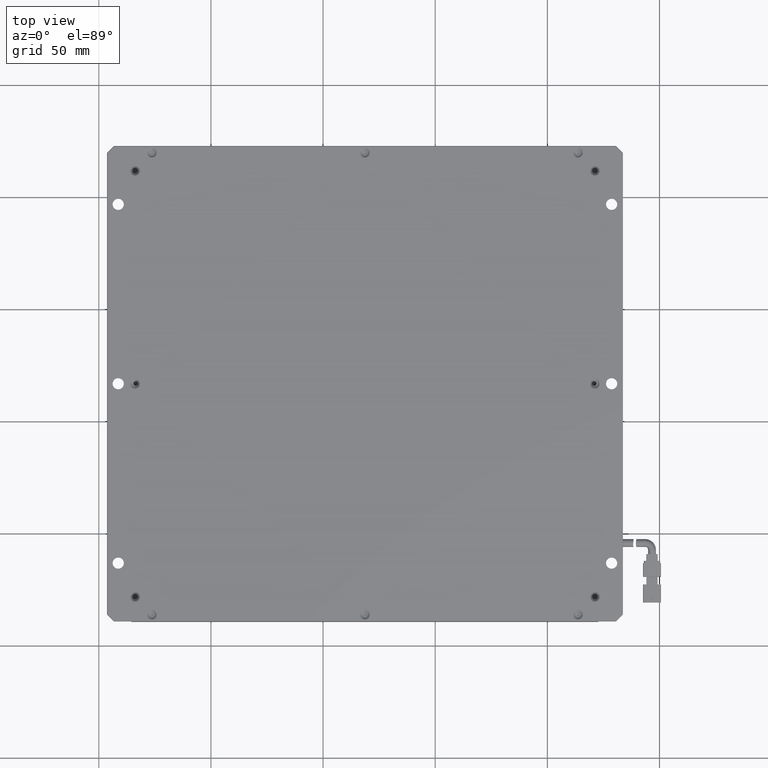
[diagram: clean part render]
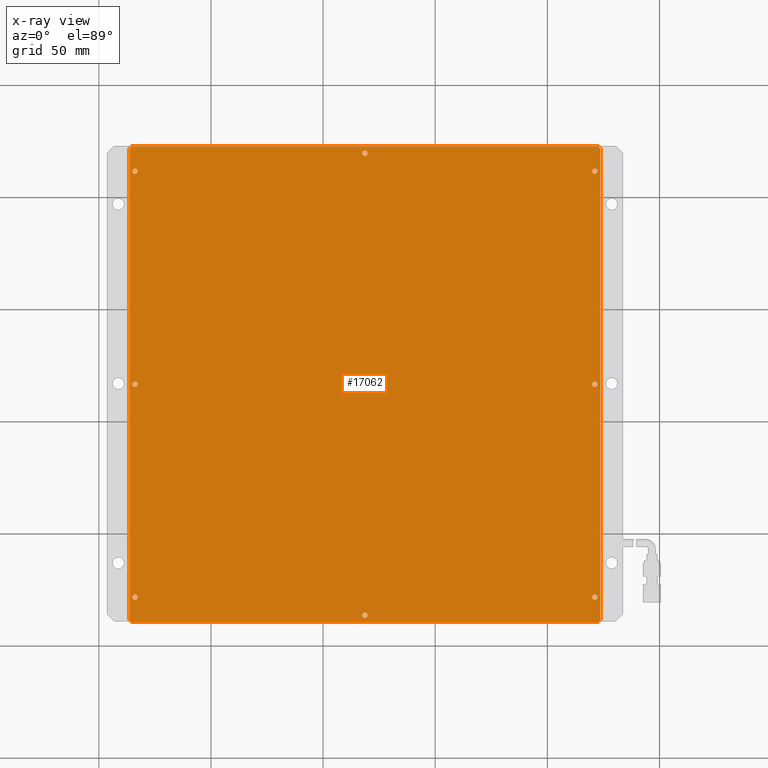
[diagram: x-ray — body ghosted, one internal face saturated and labeled with its STEP entity id]
A machine part, top view, then the same camera in x-ray: the body is ghosted and one INTERNAL B-rep face — a face not visible from any outside direction — is saturated and labeled: STEP entity #17062.
In plain terms, the highlighted planar face has unit normal (0, 0, -1).
Its self-contained STEP definition (entity closure, byte-faithful):
#71 = DIRECTION ( 'NONE',  ( 0.7071067811865573400, -0.7071067811865378000, 0.0000000000000000000 ) ) ;
#78 = CIRCLE ( 'NONE', #20793, 1.199999999999992600 ) ;
#258 = EDGE_LOOP ( 'NONE', ( #5893, #8207 ) ) ;
#287 = EDGE_LOOP ( 'NONE', ( #1516, #8221 ) ) ;
#378 = DIRECTION ( 'NONE',  ( 1.000000000000000000, 0.0000000000000000000, 0.0000000000000000000 ) ) ;
#506 = ORIENTED_EDGE ( 'NONE', *, *, #1738, .T. ) ;
#669 = EDGE_LOOP ( 'NONE', ( #8287, #12171 ) ) ;
#685 = EDGE_CURVE ( 'NONE', #4352, #11731, #16943, .T. ) ;
#760 = AXIS2_PLACEMENT_3D ( 'NONE', #5854, #17994, #14451 ) ;
#848 = EDGE_CURVE ( 'NONE', #20745, #19392, #3609, .T. ) ;
#1081 = DIRECTION ( 'NONE',  ( 1.000000000000000000, 0.0000000000000000000, 0.0000000000000000000 ) ) ;
#1124 = ORIENTED_EDGE ( 'NONE', *, *, #848, .F. ) ;
#1516 = ORIENTED_EDGE ( 'NONE', *, *, #10580, .F. ) ;
#1579 = EDGE_CURVE ( 'NONE', #2083, #21833, #21722, .T. ) ;
#1597 = DIRECTION ( 'NONE',  ( 1.000000000000000000, 0.0000000000000000000, 0.0000000000000000000 ) ) ;
#1726 = ORIENTED_EDGE ( 'NONE', *, *, #7070, .F. ) ;
#1730 = CARTESIAN_POINT ( 'NONE',  ( -83.83424941752386400, 61.62124601721920000, -13.00000000002364500 ) ) ;
#1738 = EDGE_CURVE ( 'NONE', #7660, #18110, #8137, .T. ) ;
#1745 = AXIS2_PLACEMENT_3D ( 'NONE', #1792, #20596, #3573 ) ;
#1761 = FACE_BOUND ( 'NONE', #18092, .T. ) ;
#1792 = CARTESIAN_POINT ( 'NONE',  ( 121.1657505824761500, 61.62124601721920000, -13.00000000002364500 ) ) ;
#1925 = DIRECTION ( 'NONE',  ( -0.7071067811865573400, 0.7071067811865378000, -0.0000000000000000000 ) ) ;
#1928 = EDGE_LOOP ( 'NONE', ( #1726, #12936 ) ) ;
#1984 = CARTESIAN_POINT ( 'NONE',  ( 121.1657505824761500, -128.3787539827808100, -13.00000000002364500 ) ) ;
#2033 = CARTESIAN_POINT ( 'NONE',  ( -86.33424941752386400, 71.62124601721917800, -13.00000000002364500 ) ) ;
#2083 = VERTEX_POINT ( 'NONE', #13234 ) ;
#2137 = AXIS2_PLACEMENT_3D ( 'NONE', #17340, #3522, #1597 ) ;
#2141 = VERTEX_POINT ( 'NONE', #14995 ) ;
#2520 = VERTEX_POINT ( 'NONE', #19645 ) ;
#2551 = VECTOR ( 'NONE', #18562, 1000.000000000000000 ) ;
#2666 = DIRECTION ( 'NONE',  ( 1.000000000000000000, 0.0000000000000000000, 0.0000000000000000000 ) ) ;
#3021 = DIRECTION ( 'NONE',  ( -0.0000000000000000000, -0.0000000000000000000, 1.000000000000000000 ) ) ;
#3076 = CARTESIAN_POINT ( 'NONE',  ( 123.6657505824761500, -138.3787539827808400, -13.00000000002364500 ) ) ;
#3077 = ORIENTED_EDGE ( 'NONE', *, *, #16682, .F. ) ;
#3240 = CARTESIAN_POINT ( 'NONE',  ( 121.1657505824761500, -33.37875398278074400, -13.00000000002364500 ) ) ;
#3263 = CARTESIAN_POINT ( 'NONE',  ( -85.33424941752389300, -139.3787539827807800, -13.00000000002364500 ) ) ;
#3374 = FACE_BOUND ( 'NONE', #258, .T. ) ;
#3496 = CARTESIAN_POINT ( 'NONE',  ( 123.6657505824761400, -139.3787539827808400, -13.00000000002364500 ) ) ;
#3503 = VERTEX_POINT ( 'NONE', #5638 ) ;
#3518 = VECTOR ( 'NONE', #9071, 1000.000000000000000 ) ;
#3522 = DIRECTION ( 'NONE',  ( -0.0000000000000000000, -0.0000000000000000000, 1.000000000000000000 ) ) ;
#3573 = DIRECTION ( 'NONE',  ( 1.000000000000000000, 0.0000000000000000000, 0.0000000000000000000 ) ) ;
#3609 = LINE ( 'NONE', #3496, #16677 ) ;
#3639 = CARTESIAN_POINT ( 'NONE',  ( 18.66575058247614600, -136.3787539827807800, -13.00000000002364500 ) ) ;
#3678 = VERTEX_POINT ( 'NONE', #4112 ) ;
#3742 = CARTESIAN_POINT ( 'NONE',  ( -83.83424941752386400, -128.3787539827808100, -13.00000000002364500 ) ) ;
#3937 = DIRECTION ( 'NONE',  ( -0.0000000000000000000, -0.0000000000000000000, 1.000000000000000000 ) ) ;
#4044 = EDGE_LOOP ( 'NONE', ( #21073, #3077 ) ) ;
#4112 = CARTESIAN_POINT ( 'NONE',  ( 119.9657505824761600, 61.62124601721920000, -13.00000000002364500 ) ) ;
#4127 = CARTESIAN_POINT ( 'NONE',  ( 121.1657505824761500, -33.37875398278074400, -13.00000000002364500 ) ) ;
#4352 = VERTEX_POINT ( 'NONE', #18500 ) ;
#4491 = EDGE_CURVE ( 'NONE', #4352, #8623, #11775, .T. ) ;
#4614 = EDGE_CURVE ( 'NONE', #4874, #18899, #78, .T. ) ;
#4643 = CARTESIAN_POINT ( 'NONE',  ( 122.6657505824761200, -139.3787539827808400, -13.00000000002364500 ) ) ;
#4783 = AXIS2_PLACEMENT_3D ( 'NONE', #4127, #16302, #5723 ) ;
#4814 = CARTESIAN_POINT ( 'NONE',  ( -83.83424941752386400, -33.37875398278074400, -13.00000000002364500 ) ) ;
#4840 = DIRECTION ( 'NONE',  ( 1.000000000000000000, 0.0000000000000000000, 0.0000000000000000000 ) ) ;
#4874 = VERTEX_POINT ( 'NONE', #11390 ) ;
#5180 = EDGE_CURVE ( 'NONE', #3503, #19392, #18243, .T. ) ;
#5212 = CARTESIAN_POINT ( 'NONE',  ( -86.33424941752387800, 72.62124601721919200, -13.00000000002364500 ) ) ;
#5261 = CIRCLE ( 'NONE', #14043, 1.199999999999992600 ) ;
#5461 = DIRECTION ( 'NONE',  ( -1.000000000000000000, -0.0000000000000000000, -0.0000000000000000000 ) ) ;
#5538 = CIRCLE ( 'NONE', #4783, 1.199999999999992600 ) ;
#5638 = CARTESIAN_POINT ( 'NONE',  ( -86.33424941752386400, -138.3787539827807800, -13.00000000002364500 ) ) ;
#5709 = EDGE_CURVE ( 'NONE', #17496, #21068, #9774, .T. ) ;
#5723 = DIRECTION ( 'NONE',  ( 1.000000000000000000, 0.0000000000000000000, 0.0000000000000000000 ) ) ;
#5854 = CARTESIAN_POINT ( 'NONE',  ( 18.66575058247614600, -136.3787539827807800, -13.00000000002364500 ) ) ;
#5862 = CARTESIAN_POINT ( 'NONE',  ( -82.63424941752387600, -33.37875398278074400, -13.00000000002364500 ) ) ;
#5893 = ORIENTED_EDGE ( 'NONE', *, *, #9260, .F. ) ;
#5926 = CARTESIAN_POINT ( 'NONE',  ( -83.83424941752386400, -33.37875398278074400, -13.00000000002364500 ) ) ;
#6083 = CIRCLE ( 'NONE', #10923, 1.199999999999992600 ) ;
#6092 = DIRECTION ( 'NONE',  ( -0.0000000000000000000, -0.0000000000000000000, 1.000000000000000000 ) ) ;
#6317 = CIRCLE ( 'NONE', #18337, 1.199999999999992600 ) ;
#6361 = FACE_BOUND ( 'NONE', #17769, .T. ) ;
#6370 = DIRECTION ( 'NONE',  ( 1.000000000000000000, 0.0000000000000000000, 0.0000000000000000000 ) ) ;
#6591 = DIRECTION ( 'NONE',  ( -0.0000000000000000000, -0.0000000000000000000, 1.000000000000000000 ) ) ;
#6593 = ORIENTED_EDGE ( 'NONE', *, *, #20720, .T. ) ;
#6833 = CARTESIAN_POINT ( 'NONE',  ( -86.33424941752385000, -138.3787539827808400, -13.00000000002364500 ) ) ;
#7070 = EDGE_CURVE ( 'NONE', #21833, #2083, #12169, .T. ) ;
#7153 = CIRCLE ( 'NONE', #2137, 1.199999999999992600 ) ;
#7484 = CIRCLE ( 'NONE', #8716, 1.199999999999992600 ) ;
#7660 = VERTEX_POINT ( 'NONE', #17817 ) ;
#7751 = DIRECTION ( 'NONE',  ( 1.000000000000000000, 0.0000000000000000000, 0.0000000000000000000 ) ) ;
#8044 = DIRECTION ( 'NONE',  ( 0.7071067811865378000, 0.7071067811865573400, 0.0000000000000000000 ) ) ;
#8115 = CARTESIAN_POINT ( 'NONE',  ( 123.6657505824761400, 72.62124601721919200, -13.00000000002364500 ) ) ;
#8122 = CIRCLE ( 'NONE', #14813, 1.199999999999992600 ) ;
#8137 = LINE ( 'NONE', #19340, #3518 ) ;
#8207 = ORIENTED_EDGE ( 'NONE', *, *, #20483, .F. ) ;
#8221 = ORIENTED_EDGE ( 'NONE', *, *, #8327, .F. ) ;
#8287 = ORIENTED_EDGE ( 'NONE', *, *, #17313, .F. ) ;
#8324 = AXIS2_PLACEMENT_3D ( 'NONE', #3639, #15664, #8565 ) ;
#8327 = EDGE_CURVE ( 'NONE', #3678, #16185, #7153, .T. ) ;
#8392 = EDGE_LOOP ( 'NONE', ( #20937, #15351 ) ) ;
#8435 = DIRECTION ( 'NONE',  ( -0.0000000000000000000, -0.0000000000000000000, 1.000000000000000000 ) ) ;
#8444 = AXIS2_PLACEMENT_3D ( 'NONE', #11515, #3021, #6370 ) ;
#8467 = VERTEX_POINT ( 'NONE', #9117 ) ;
#8501 = EDGE_LOOP ( 'NONE', ( #12468, #17485, #506, #9353, #14924, #1124, #6593, #21511 ) ) ;
#8550 = AXIS2_PLACEMENT_3D ( 'NONE', #3240, #6591, #4840 ) ;
#8565 = DIRECTION ( 'NONE',  ( 1.000000000000000000, 0.0000000000000000000, 0.0000000000000000000 ) ) ;
#8623 = VERTEX_POINT ( 'NONE', #3076 ) ;
#8716 = AXIS2_PLACEMENT_3D ( 'NONE', #10035, #8435, #15241 ) ;
#8857 = DIRECTION ( 'NONE',  ( -0.0000000000000000000, 1.000000000000000000, -0.0000000000000000000 ) ) ;
#8907 = VECTOR ( 'NONE', #12889, 1000.000000000000000 ) ;
#8959 = DIRECTION ( 'NONE',  ( 1.000000000000000000, 0.0000000000000000000, 0.0000000000000000000 ) ) ;
#9071 = DIRECTION ( 'NONE',  ( -0.7071067811865378000, -0.7071067811865573400, 0.0000000000000000000 ) ) ;
#9117 = CARTESIAN_POINT ( 'NONE',  ( -85.03424941752385300, -128.3787539827808100, -13.00000000002364500 ) ) ;
#9201 = VERTEX_POINT ( 'NONE', #5862 ) ;
#9214 = CARTESIAN_POINT ( 'NONE',  ( 122.3657505824761500, -33.37875398278074400, -13.00000000002364500 ) ) ;
#9251 = VERTEX_POINT ( 'NONE', #11453 ) ;
#9260 = EDGE_CURVE ( 'NONE', #19733, #8467, #14730, .T. ) ;
#9353 = ORIENTED_EDGE ( 'NONE', *, *, #17430, .F. ) ;
#9390 = CIRCLE ( 'NONE', #8444, 1.199999999999992600 ) ;
#9498 = VERTEX_POINT ( 'NONE', #13984 ) ;
#9509 = CARTESIAN_POINT ( 'NONE',  ( 123.6657505824761400, 72.62124601721919200, -13.00000000002364500 ) ) ;
#9578 = VECTOR ( 'NONE', #1925, 1000.000000000000000 ) ;
#9627 = DIRECTION ( 'NONE',  ( -0.0000000000000000000, -0.0000000000000000000, 1.000000000000000000 ) ) ;
#9774 = CIRCLE ( 'NONE', #8550, 1.199999999999992600 ) ;
#9902 = ORIENTED_EDGE ( 'NONE', *, *, #5709, .F. ) ;
#10035 = CARTESIAN_POINT ( 'NONE',  ( -83.83424941752386400, 61.62124601721920000, -13.00000000002364500 ) ) ;
#10448 = ORIENTED_EDGE ( 'NONE', *, *, #16973, .F. ) ;
#10580 = EDGE_CURVE ( 'NONE', #16185, #3678, #19398, .T. ) ;
#10688 = FACE_BOUND ( 'NONE', #4044, .T. ) ;
#10923 = AXIS2_PLACEMENT_3D ( 'NONE', #5926, #6092, #7751 ) ;
#11382 = DIRECTION ( 'NONE',  ( 0.0000000000000000000, 0.0000000000000000000, -1.000000000000000000 ) ) ;
#11390 = CARTESIAN_POINT ( 'NONE',  ( -82.63424941752387600, 61.62124601721920000, -13.00000000002364500 ) ) ;
#11453 = CARTESIAN_POINT ( 'NONE',  ( -85.03424941752385300, -33.37875398278074400, -13.00000000002364500 ) ) ;
#11515 = CARTESIAN_POINT ( 'NONE',  ( 18.66575058247614600, 69.62124601721919200, -13.00000000002364500 ) ) ;
#11731 = VERTEX_POINT ( 'NONE', #20872 ) ;
#11744 = CARTESIAN_POINT ( 'NONE',  ( 122.3657505824761500, 61.62124601721920000, -13.00000000002364500 ) ) ;
#11747 = CARTESIAN_POINT ( 'NONE',  ( -82.63424941752387600, -128.3787539827808100, -13.00000000002364500 ) ) ;
#11775 = LINE ( 'NONE', #11878, #2551 ) ;
#11878 = CARTESIAN_POINT ( 'NONE',  ( 123.6657505824761400, 72.62124601721919200, -13.00000000002364500 ) ) ;
#12079 = EDGE_CURVE ( 'NONE', #7660, #11731, #17617, .T. ) ;
#12169 = CIRCLE ( 'NONE', #760, 1.199999999999992600 ) ;
#12171 = ORIENTED_EDGE ( 'NONE', *, *, #21329, .F. ) ;
#12172 = DIRECTION ( 'NONE',  ( 1.000000000000000000, 0.0000000000000000000, 0.0000000000000000000 ) ) ;
#12189 = CARTESIAN_POINT ( 'NONE',  ( 19.86575058247613900, -136.3787539827807800, -13.00000000002364500 ) ) ;
#12458 = CARTESIAN_POINT ( 'NONE',  ( 123.6657505824761400, 71.62124601721922100, -13.00000000002364500 ) ) ;
#12468 = ORIENTED_EDGE ( 'NONE', *, *, #685, .T. ) ;
#12539 = ORIENTED_EDGE ( 'NONE', *, *, #21939, .F. ) ;
#12654 = CIRCLE ( 'NONE', #21655, 1.199999999999992600 ) ;
#12869 = FACE_BOUND ( 'NONE', #1928, .T. ) ;
#12889 = DIRECTION ( 'NONE',  ( 1.000000000000000000, 0.0000000000000000000, 0.0000000000000000000 ) ) ;
#12936 = ORIENTED_EDGE ( 'NONE', *, *, #1579, .F. ) ;
#13203 = CIRCLE ( 'NONE', #19328, 1.199999999999992600 ) ;
#13234 = CARTESIAN_POINT ( 'NONE',  ( 17.46575058247615400, -136.3787539827807800, -13.00000000002364500 ) ) ;
#13300 = CARTESIAN_POINT ( 'NONE',  ( 122.6657505824761800, -139.3787539827808100, -13.00000000002364500 ) ) ;
#13549 = LINE ( 'NONE', #13300, #19231 ) ;
#13801 = VERTEX_POINT ( 'NONE', #21865 ) ;
#13984 = CARTESIAN_POINT ( 'NONE',  ( 19.86575058247613900, 69.62124601721919200, -13.00000000002364500 ) ) ;
#14043 = AXIS2_PLACEMENT_3D ( 'NONE', #1984, #3937, #378 ) ;
#14105 = EDGE_CURVE ( 'NONE', #2520, #2141, #5261, .T. ) ;
#14451 = DIRECTION ( 'NONE',  ( 1.000000000000000000, 0.0000000000000000000, 0.0000000000000000000 ) ) ;
#14530 = FACE_OUTER_BOUND ( 'NONE', #8501, .T. ) ;
#14730 = CIRCLE ( 'NONE', #16239, 1.199999999999992600 ) ;
#14813 = AXIS2_PLACEMENT_3D ( 'NONE', #3742, #16068, #8959 ) ;
#14924 = ORIENTED_EDGE ( 'NONE', *, *, #5180, .T. ) ;
#14995 = CARTESIAN_POINT ( 'NONE',  ( 119.9657505824761600, -128.3787539827808100, -13.00000000002364500 ) ) ;
#15241 = DIRECTION ( 'NONE',  ( 1.000000000000000000, 0.0000000000000000000, 0.0000000000000000000 ) ) ;
#15320 = DIRECTION ( 'NONE',  ( 1.000000000000000000, 0.0000000000000000000, 0.0000000000000000000 ) ) ;
#15345 = FACE_BOUND ( 'NONE', #669, .T. ) ;
#15351 = ORIENTED_EDGE ( 'NONE', *, *, #16700, .F. ) ;
#15664 = DIRECTION ( 'NONE',  ( -0.0000000000000000000, -0.0000000000000000000, 1.000000000000000000 ) ) ;
#16068 = DIRECTION ( 'NONE',  ( -0.0000000000000000000, -0.0000000000000000000, 1.000000000000000000 ) ) ;
#16112 = VECTOR ( 'NONE', #8857, 1000.000000000000000 ) ;
#16185 = VERTEX_POINT ( 'NONE', #11744 ) ;
#16239 = AXIS2_PLACEMENT_3D ( 'NONE', #21862, #9627, #1081 ) ;
#16274 = PLANE ( 'NONE',  #21110 ) ;
#16302 = DIRECTION ( 'NONE',  ( -0.0000000000000000000, -0.0000000000000000000, 1.000000000000000000 ) ) ;
#16640 = LINE ( 'NONE', #5212, #16112 ) ;
#16677 = VECTOR ( 'NONE', #5461, 1000.000000000000000 ) ;
#16682 = EDGE_CURVE ( 'NONE', #2141, #2520, #13203, .T. ) ;
#16700 = EDGE_CURVE ( 'NONE', #18899, #4874, #7484, .T. ) ;
#16708 = EDGE_CURVE ( 'NONE', #9201, #9251, #12654, .T. ) ;
#16943 = LINE ( 'NONE', #12458, #9578 ) ;
#16973 = EDGE_CURVE ( 'NONE', #9251, #9201, #6083, .T. ) ;
#17035 = DIRECTION ( 'NONE',  ( -0.0000000000000000000, -0.0000000000000000000, 1.000000000000000000 ) ) ;
#17062 = ADVANCED_FACE ( 'NONE', ( #14530, #15345, #12869, #10688, #6361, #18029, #3374, #1761, #17487 ), #16274, .F. ) ;
#17313 = EDGE_CURVE ( 'NONE', #9498, #13801, #6317, .T. ) ;
#17340 = CARTESIAN_POINT ( 'NONE',  ( 121.1657505824761500, 61.62124601721920000, -13.00000000002364500 ) ) ;
#17357 = CARTESIAN_POINT ( 'NONE',  ( 18.66575058247614600, 69.62124601721919200, -13.00000000002364500 ) ) ;
#17408 = DIRECTION ( 'NONE',  ( -0.0000000000000000000, -0.0000000000000000000, 1.000000000000000000 ) ) ;
#17430 = EDGE_CURVE ( 'NONE', #3503, #18110, #16640, .T. ) ;
#17485 = ORIENTED_EDGE ( 'NONE', *, *, #12079, .F. ) ;
#17487 = FACE_BOUND ( 'NONE', #8392, .T. ) ;
#17496 = VERTEX_POINT ( 'NONE', #19701 ) ;
#17603 = DIRECTION ( 'NONE',  ( -0.0000000000000000000, -0.0000000000000000000, 1.000000000000000000 ) ) ;
#17617 = LINE ( 'NONE', #9509, #8907 ) ;
#17769 = EDGE_LOOP ( 'NONE', ( #12539, #9902 ) ) ;
#17817 = CARTESIAN_POINT ( 'NONE',  ( -85.33424941752390700, 72.62124601721917800, -13.00000000002364500 ) ) ;
#17925 = ORIENTED_EDGE ( 'NONE', *, *, #16708, .F. ) ;
#17994 = DIRECTION ( 'NONE',  ( -0.0000000000000000000, -0.0000000000000000000, 1.000000000000000000 ) ) ;
#18029 = FACE_BOUND ( 'NONE', #287, .T. ) ;
#18092 = EDGE_LOOP ( 'NONE', ( #17925, #10448 ) ) ;
#18110 = VERTEX_POINT ( 'NONE', #2033 ) ;
#18243 = LINE ( 'NONE', #6833, #18536 ) ;
#18337 = AXIS2_PLACEMENT_3D ( 'NONE', #17357, #17603, #21019 ) ;
#18500 = CARTESIAN_POINT ( 'NONE',  ( 123.6657505824761400, 71.62124601721922100, -13.00000000002364500 ) ) ;
#18536 = VECTOR ( 'NONE', #71, 1000.000000000000000 ) ;
#18562 = DIRECTION ( 'NONE',  ( 0.0000000000000000000, -1.000000000000000000, 0.0000000000000000000 ) ) ;
#18784 = DIRECTION ( 'NONE',  ( -0.0000000000000000000, -0.0000000000000000000, 1.000000000000000000 ) ) ;
#18899 = VERTEX_POINT ( 'NONE', #21347 ) ;
#19231 = VECTOR ( 'NONE', #8044, 1000.000000000000000 ) ;
#19328 = AXIS2_PLACEMENT_3D ( 'NONE', #20599, #17035, #20352 ) ;
#19340 = CARTESIAN_POINT ( 'NONE',  ( -85.33424941752389300, 72.62124601721919200, -13.00000000002364500 ) ) ;
#19392 = VERTEX_POINT ( 'NONE', #3263 ) ;
#19398 = CIRCLE ( 'NONE', #1745, 1.199999999999992600 ) ;
#19645 = CARTESIAN_POINT ( 'NONE',  ( 122.3657505824761500, -128.3787539827808100, -13.00000000002364500 ) ) ;
#19701 = CARTESIAN_POINT ( 'NONE',  ( 119.9657505824761600, -33.37875398278074400, -13.00000000002364500 ) ) ;
#19733 = VERTEX_POINT ( 'NONE', #11747 ) ;
#20352 = DIRECTION ( 'NONE',  ( 1.000000000000000000, 0.0000000000000000000, 0.0000000000000000000 ) ) ;
#20483 = EDGE_CURVE ( 'NONE', #8467, #19733, #8122, .T. ) ;
#20596 = DIRECTION ( 'NONE',  ( -0.0000000000000000000, -0.0000000000000000000, 1.000000000000000000 ) ) ;
#20599 = CARTESIAN_POINT ( 'NONE',  ( 121.1657505824761500, -128.3787539827808100, -13.00000000002364500 ) ) ;
#20720 = EDGE_CURVE ( 'NONE', #20745, #8623, #13549, .T. ) ;
#20745 = VERTEX_POINT ( 'NONE', #4643 ) ;
#20793 = AXIS2_PLACEMENT_3D ( 'NONE', #1730, #17408, #12172 ) ;
#20872 = CARTESIAN_POINT ( 'NONE',  ( 122.6657505824761200, 72.62124601721919200, -13.00000000002364500 ) ) ;
#20937 = ORIENTED_EDGE ( 'NONE', *, *, #4614, .F. ) ;
#21019 = DIRECTION ( 'NONE',  ( 1.000000000000000000, 0.0000000000000000000, 0.0000000000000000000 ) ) ;
#21068 = VERTEX_POINT ( 'NONE', #9214 ) ;
#21073 = ORIENTED_EDGE ( 'NONE', *, *, #14105, .F. ) ;
#21110 = AXIS2_PLACEMENT_3D ( 'NONE', #8115, #11382, #2666 ) ;
#21329 = EDGE_CURVE ( 'NONE', #13801, #9498, #9390, .T. ) ;
#21347 = CARTESIAN_POINT ( 'NONE',  ( -85.03424941752385300, 61.62124601721920000, -13.00000000002364500 ) ) ;
#21511 = ORIENTED_EDGE ( 'NONE', *, *, #4491, .F. ) ;
#21655 = AXIS2_PLACEMENT_3D ( 'NONE', #4814, #18784, #15320 ) ;
#21722 = CIRCLE ( 'NONE', #8324, 1.199999999999992600 ) ;
#21833 = VERTEX_POINT ( 'NONE', #12189 ) ;
#21862 = CARTESIAN_POINT ( 'NONE',  ( -83.83424941752386400, -128.3787539827808100, -13.00000000002364500 ) ) ;
#21865 = CARTESIAN_POINT ( 'NONE',  ( 17.46575058247615400, 69.62124601721919200, -13.00000000002364500 ) ) ;
#21939 = EDGE_CURVE ( 'NONE', #21068, #17496, #5538, .T. ) ;